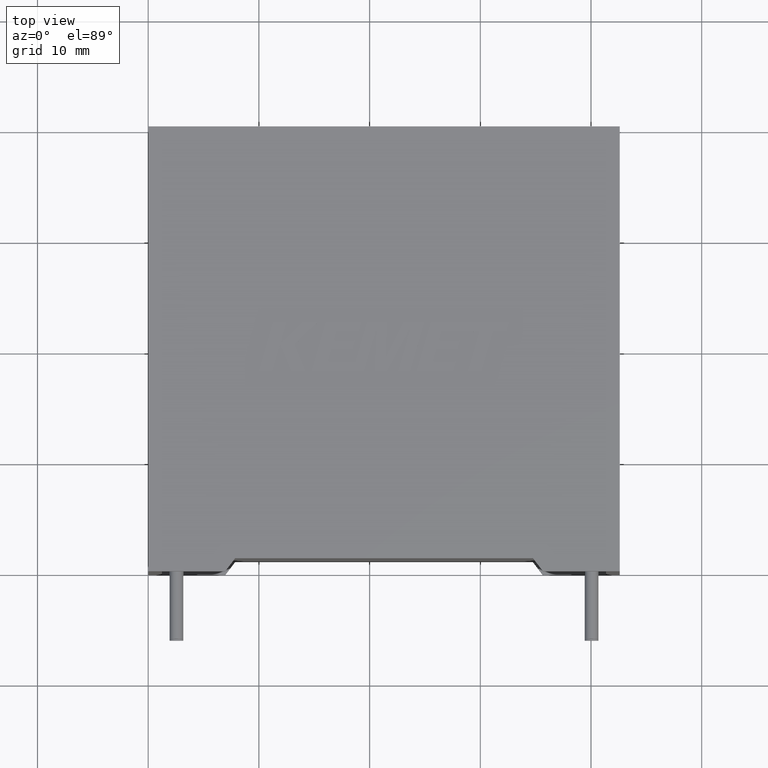
[diagram: clean part render]
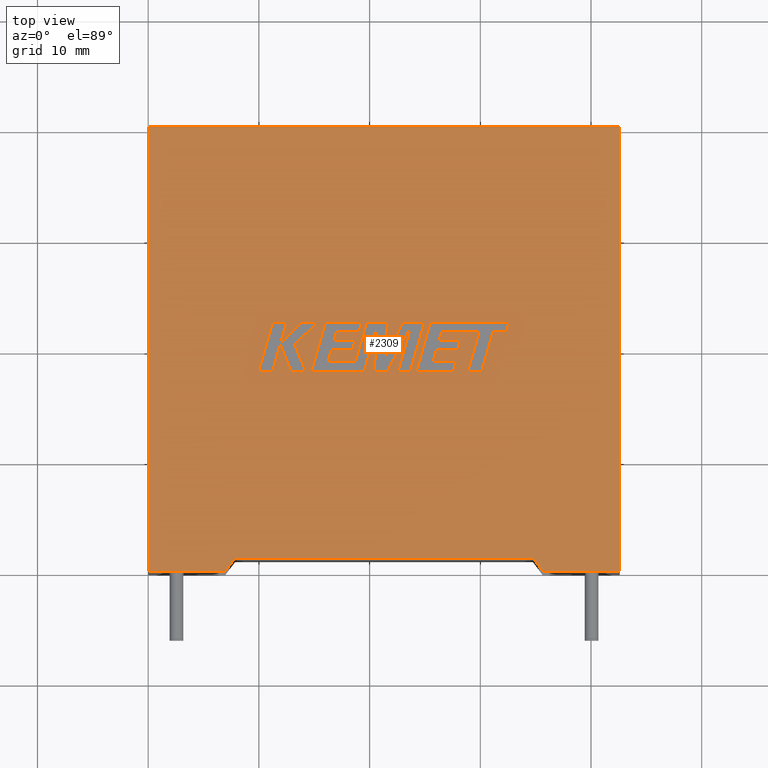
[diagram: same view with one face highlighted and labeled with its STEP entity id]
A machine part, top view. The second image highlights one B-rep face of the part: STEP entity #2309.
In plain terms, the highlighted planar face has unit normal (0, 0, -1).
Its self-contained STEP definition (entity closure, byte-faithful):
#31 = CARTESIAN_POINT ( 'NONE',  ( 7.850000000000001400, 1.181880000000004900, 20.39999999999999900 ) ) ;
#85 = ORIENTED_EDGE ( 'NONE', *, *, #1933, .T. ) ;
#110 = EDGE_CURVE ( 'NONE', #3098, #446, #2496, .T. ) ;
#118 = VERTEX_POINT ( 'NONE', #2262 ) ;
#136 = VERTEX_POINT ( 'NONE', #1845 ) ;
#140 = LINE ( 'NONE', #267, #818 ) ;
#174 = CARTESIAN_POINT ( 'NONE',  ( 0.0000000000000000000, 40.20000000000000300, 20.39999999999999900 ) ) ;
#185 = LINE ( 'NONE', #2015, #1322 ) ;
#214 = CARTESIAN_POINT ( 'NONE',  ( 42.60000000000000100, 0.0000000000000000000, 20.39999999999999900 ) ) ;
#267 = CARTESIAN_POINT ( 'NONE',  ( 0.0000000000000000000, 0.0000000000000000000, 20.39999999999999900 ) ) ;
#446 = VERTEX_POINT ( 'NONE', #2648 ) ;
#539 = CARTESIAN_POINT ( 'NONE',  ( 34.74999999999999300, 1.181880000000004900, 20.39999999999999900 ) ) ;
#623 = VECTOR ( 'NONE', #1277, 1000.000000000000000 ) ;
#628 = DIRECTION ( 'NONE',  ( -1.000000000000000000, 0.0000000000000000000, -0.0000000000000000000 ) ) ;
#672 = DIRECTION ( 'NONE',  ( -1.000000000000000000, -0.0000000000000000000, -0.0000000000000000000 ) ) ;
#761 = DIRECTION ( 'NONE',  ( -0.0000000000000000000, -1.000000000000000000, -0.0000000000000000000 ) ) ;
#794 = CARTESIAN_POINT ( 'NONE',  ( 42.60000000000000100, 0.0000000000000000000, 20.39999999999999900 ) ) ;
#818 = VECTOR ( 'NONE', #2418, 1000.000000000000000 ) ;
#826 = EDGE_CURVE ( 'NONE', #3098, #2053, #2005, .T. ) ;
#842 = EDGE_LOOP ( 'NONE', ( #1580, #956, #1044, #2423, #85, #2331, #925, #848 ) ) ;
#848 = ORIENTED_EDGE ( 'NONE', *, *, #1684, .F. ) ;
#878 = PLANE ( 'NONE',  #986 ) ;
#891 = DIRECTION ( 'NONE',  ( 0.0000000000000000000, 0.0000000000000000000, -1.000000000000000000 ) ) ;
#925 = ORIENTED_EDGE ( 'NONE', *, *, #999, .T. ) ;
#929 = CARTESIAN_POINT ( 'NONE',  ( 34.74999999999999300, 1.181880000000004900, 20.39999999999999900 ) ) ;
#956 = ORIENTED_EDGE ( 'NONE', *, *, #110, .T. ) ;
#986 = AXIS2_PLACEMENT_3D ( 'NONE', #3041, #891, #628 ) ;
#999 = EDGE_CURVE ( 'NONE', #2393, #2671, #3028, .T. ) ;
#1044 = ORIENTED_EDGE ( 'NONE', *, *, #1979, .T. ) ;
#1097 = DIRECTION ( 'NONE',  ( -0.6058387572609910100, -0.7955874560351351400, 0.0000000000000000000 ) ) ;
#1180 = VECTOR ( 'NONE', #2017, 999.9999999999998900 ) ;
#1277 = DIRECTION ( 'NONE',  ( 0.0000000000000000000, 1.000000000000000000, 0.0000000000000000000 ) ) ;
#1322 = VECTOR ( 'NONE', #1097, 999.9999999999998900 ) ;
#1382 = VERTEX_POINT ( 'NONE', #214 ) ;
#1533 = CARTESIAN_POINT ( 'NONE',  ( 0.0000000000000000000, 0.0000000000000000000, 20.39999999999999900 ) ) ;
#1580 = ORIENTED_EDGE ( 'NONE', *, *, #826, .F. ) ;
#1588 = DIRECTION ( 'NONE',  ( -1.000000000000000000, -9.673179234071416100E-017, 0.0000000000000000000 ) ) ;
#1684 = EDGE_CURVE ( 'NONE', #2053, #2671, #185, .T. ) ;
#1765 = VECTOR ( 'NONE', #672, 1000.000000000000000 ) ;
#1787 = CARTESIAN_POINT ( 'NONE',  ( 21.30000000000000100, 1.181880000000006300, 20.39999999999999900 ) ) ;
#1832 = CARTESIAN_POINT ( 'NONE',  ( 0.0000000000000000000, 0.0000000000000000000, 20.39999999999999900 ) ) ;
#1845 = CARTESIAN_POINT ( 'NONE',  ( 0.0000000000000000000, 40.20000000000000300, 20.39999999999999900 ) ) ;
#1933 = EDGE_CURVE ( 'NONE', #118, #136, #3063, .T. ) ;
#1950 = CARTESIAN_POINT ( 'NONE',  ( 6.950000000000000200, 1.702259050814820900E-015, 20.39999999999999900 ) ) ;
#1979 = EDGE_CURVE ( 'NONE', #446, #1382, #140, .T. ) ;
#2005 = LINE ( 'NONE', #1787, #2616 ) ;
#2015 = CARTESIAN_POINT ( 'NONE',  ( 7.850000000000001400, 1.181880000000004900, 20.39999999999999900 ) ) ;
#2017 = DIRECTION ( 'NONE',  ( 0.6058387572609910100, -0.7955874560351351400, 0.0000000000000000000 ) ) ;
#2053 = VERTEX_POINT ( 'NONE', #31 ) ;
#2065 = EDGE_CURVE ( 'NONE', #1382, #118, #2710, .T. ) ;
#2072 = LINE ( 'NONE', #1533, #2899 ) ;
#2107 = EDGE_CURVE ( 'NONE', #136, #2393, #2072, .T. ) ;
#2262 = CARTESIAN_POINT ( 'NONE',  ( 42.60000000000000100, 40.20000000000000300, 20.39999999999999900 ) ) ;
#2300 = VECTOR ( 'NONE', #2579, 1000.000000000000000 ) ;
#2309 = ADVANCED_FACE ( 'NONE', ( #2975 ), #878, .F. ) ;
#2331 = ORIENTED_EDGE ( 'NONE', *, *, #2107, .T. ) ;
#2393 = VERTEX_POINT ( 'NONE', #2552 ) ;
#2418 = DIRECTION ( 'NONE',  ( 1.000000000000000000, 0.0000000000000000000, 0.0000000000000000000 ) ) ;
#2423 = ORIENTED_EDGE ( 'NONE', *, *, #2065, .T. ) ;
#2496 = LINE ( 'NONE', #539, #1180 ) ;
#2552 = CARTESIAN_POINT ( 'NONE',  ( 0.0000000000000000000, 0.0000000000000000000, 20.39999999999999900 ) ) ;
#2579 = DIRECTION ( 'NONE',  ( 1.000000000000000000, 0.0000000000000000000, 0.0000000000000000000 ) ) ;
#2616 = VECTOR ( 'NONE', #1588, 1000.000000000000000 ) ;
#2648 = CARTESIAN_POINT ( 'NONE',  ( 35.64999999999999900, 1.702259050814820900E-015, 20.39999999999999900 ) ) ;
#2671 = VERTEX_POINT ( 'NONE', #1950 ) ;
#2710 = LINE ( 'NONE', #794, #623 ) ;
#2899 = VECTOR ( 'NONE', #761, 1000.000000000000000 ) ;
#2975 = FACE_OUTER_BOUND ( 'NONE', #842, .T. ) ;
#3028 = LINE ( 'NONE', #1832, #2300 ) ;
#3041 = CARTESIAN_POINT ( 'NONE',  ( 0.0000000000000000000, 0.0000000000000000000, 20.39999999999999900 ) ) ;
#3063 = LINE ( 'NONE', #174, #1765 ) ;
#3098 = VERTEX_POINT ( 'NONE', #929 ) ;